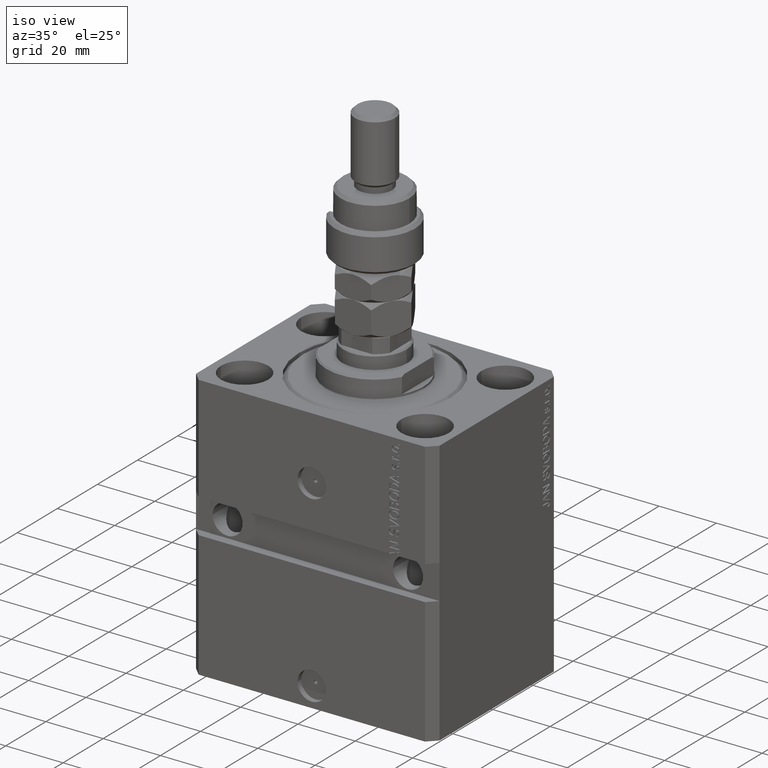
[diagram: clean part render]
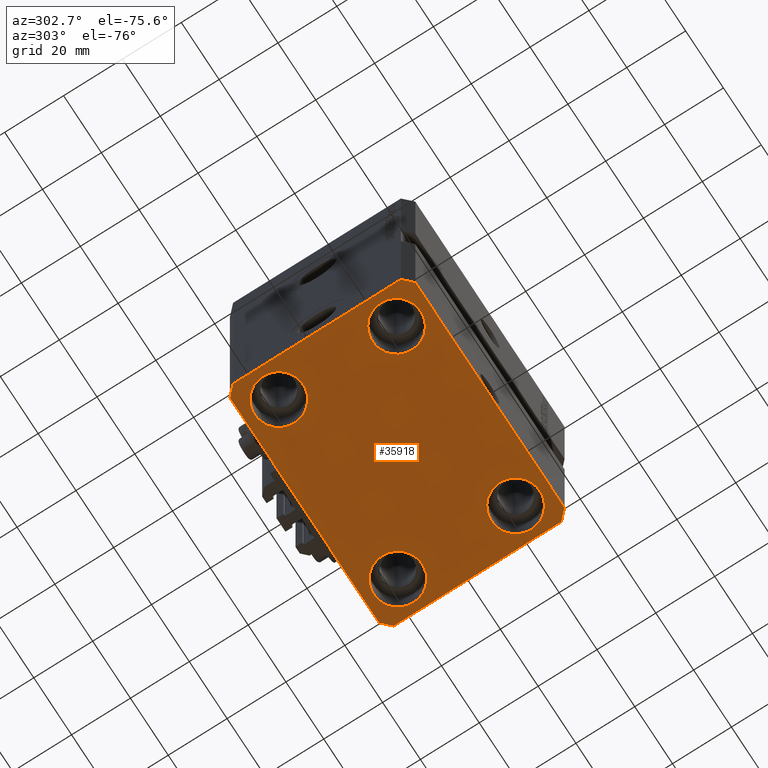
[diagram: tour spotlight — one face highlighted and labeled with its STEP entity id]
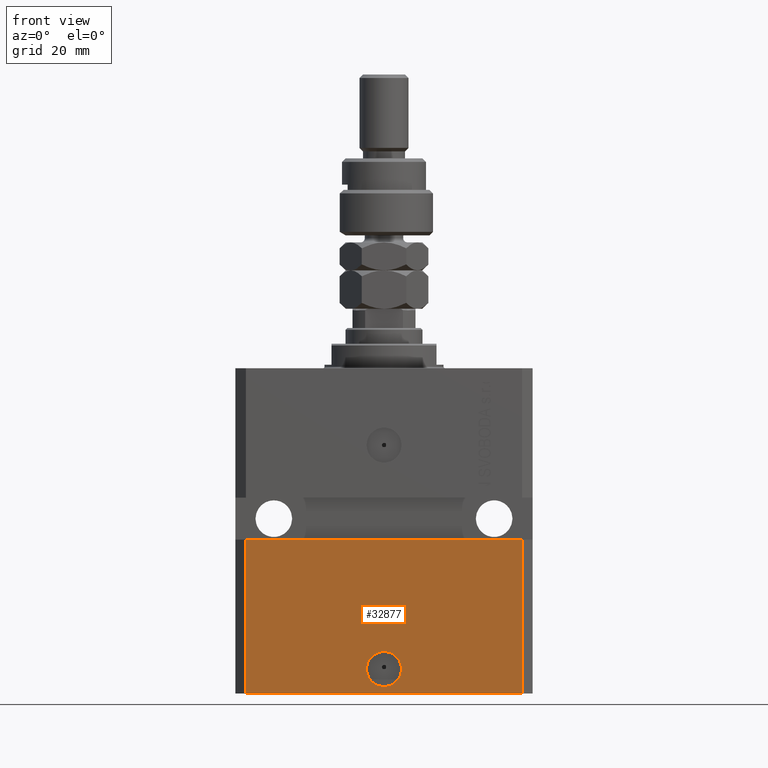
[diagram: tour spotlight — one face highlighted and labeled with its STEP entity id]
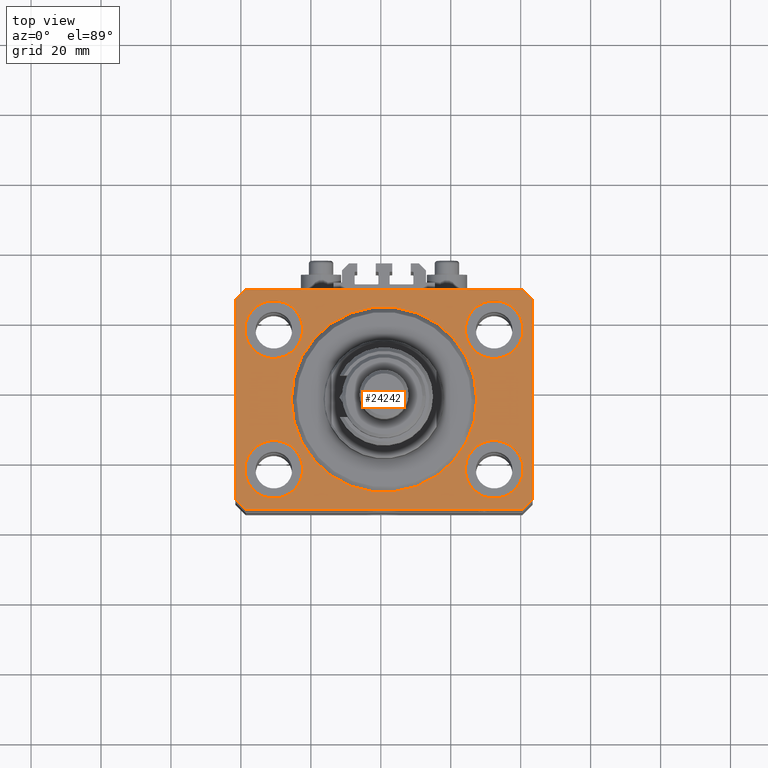
[diagram: tour spotlight — one face highlighted and labeled with its STEP entity id]
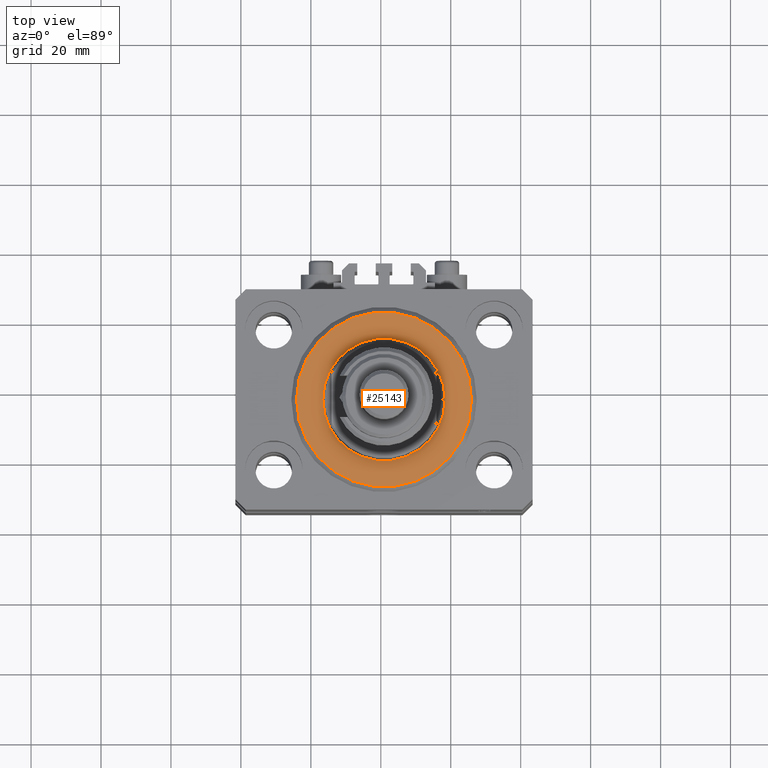
[diagram: tour spotlight — one face highlighted and labeled with its STEP entity id]
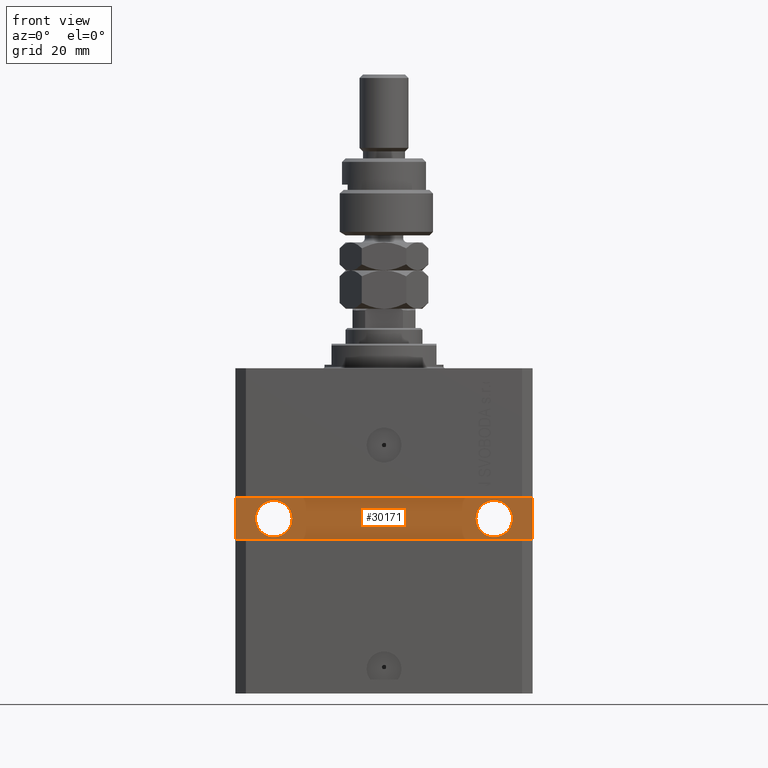
[diagram: tour spotlight — one face highlighted and labeled with its STEP entity id]
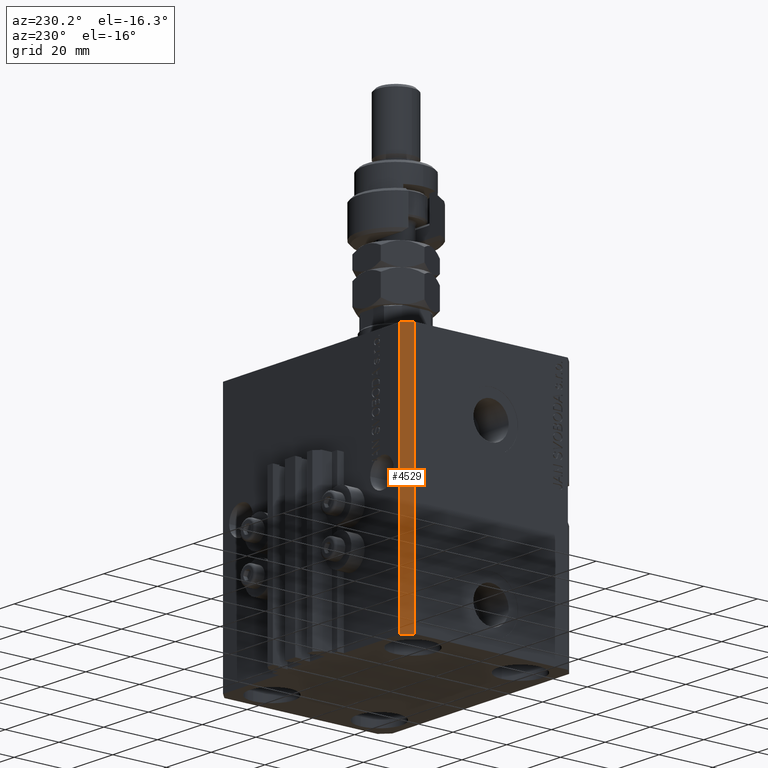
[diagram: tour spotlight — one face highlighted and labeled with its STEP entity id]
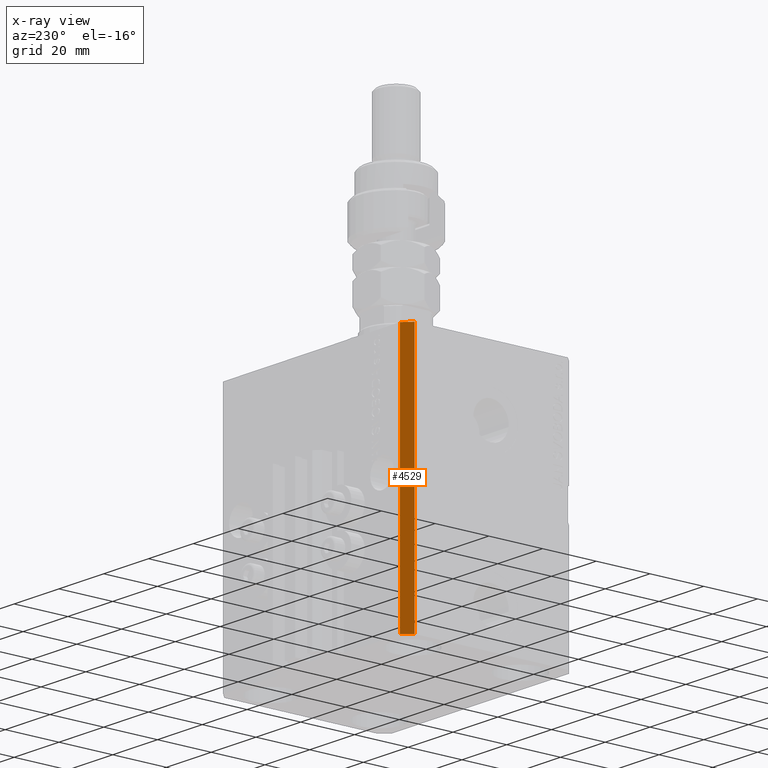
[diagram: x-ray of the same camera — body ghosted, this tour face saturated]
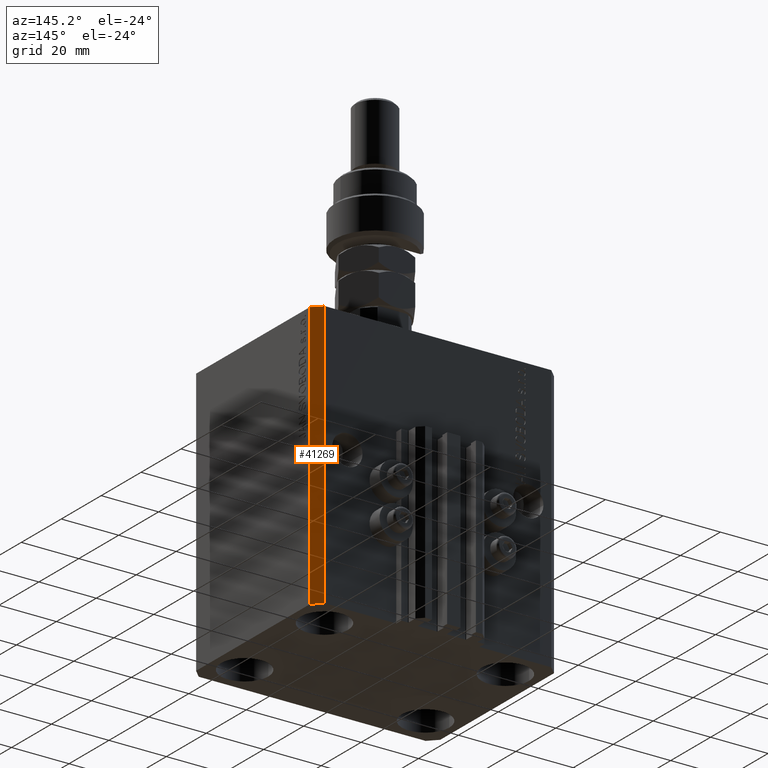
[diagram: tour spotlight — one face highlighted and labeled with its STEP entity id]
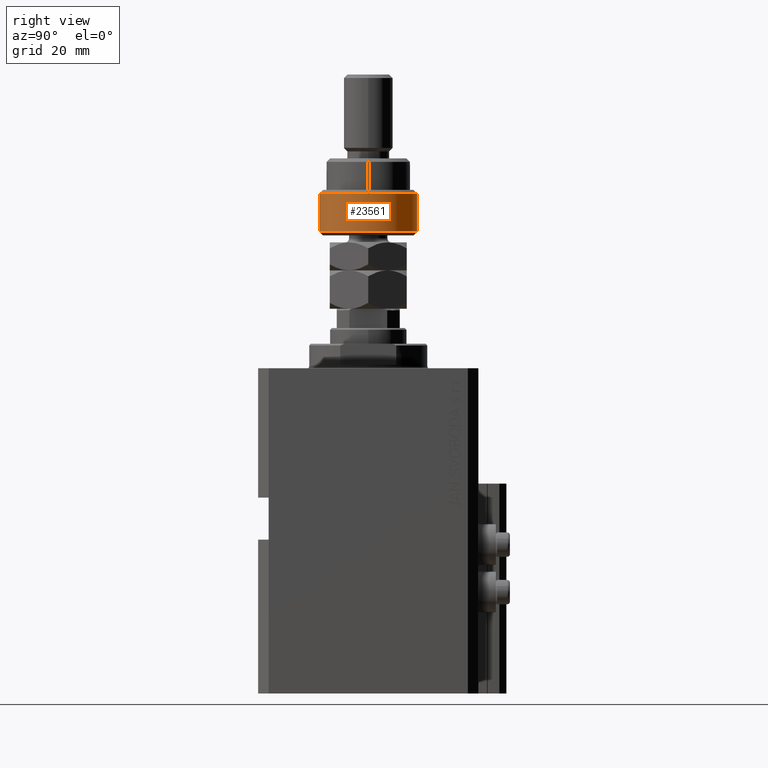
[diagram: tour spotlight — one face highlighted and labeled with its STEP entity id]
A machine part: a face-by-face anatomy tour. The part has 1172 B-rep faces; the first image is the clean iso view, then the 8 largest visible faces are spotlighted one at a time (largest first), each with its STEP entity span.

Face 1 — auxiliary view, entity #35918. In plain terms, the highlighted planar face has unit normal (0, 0, 1).
Definition (entity closure, byte-faithful):
#461 = CARTESIAN_POINT ( 'NONE',  ( 39.50000000000056843, 31.50000000000000000, -93.00000000000000000 ) ) ;
#522 = LINE ( 'NONE', #39766, #24228 ) ;
#601 = EDGE_CURVE ( 'NONE', #5259, #38019, #522, .T. ) ;
#1561 = LINE ( 'NONE', #5144, #26179 ) ;
#2593 = CIRCLE ( 'NONE', #26206, 8.249999999999992895 ) ;
#2637 = AXIS2_PLACEMENT_3D ( 'NONE', #28513, #44588, #13744 ) ;
#3036 = VERTEX_POINT ( 'NONE', #34083 ) ;
#3556 = DIRECTION ( 'NONE',  ( 1.000000000000000000, 0.000000000000000000, 0.000000000000000000 ) ) ;
#3625 = DIRECTION ( 'NONE',  ( 1.000000000000000000, 0.000000000000000000, 0.000000000000000000 ) ) ;
#4054 = DIRECTION ( 'NONE',  ( -0.000000000000000000, -0.000000000000000000, 1.000000000000000000 ) ) ;
#5020 = AXIS2_PLACEMENT_3D ( 'NONE', #45437, #42391, #42136 ) ;
#5144 = CARTESIAN_POINT ( 'NONE',  ( 42.50000000000000711, -28.50000000000000355, -93.00000000000000000 ) ) ;
#5259 = VERTEX_POINT ( 'NONE', #461 ) ;
#5648 = DIRECTION ( 'NONE',  ( -0.000000000000000000, -0.000000000000000000, 1.000000000000000000 ) ) ;
#5860 = ORIENTED_EDGE ( 'NONE', *, *, #15538, .F. ) ;
#6256 = CARTESIAN_POINT ( 'NONE',  ( -42.50000000000000000, 28.50000000000000000, -93.00000000000000000 ) ) ;
#6391 = EDGE_CURVE ( 'NONE', #50327, #32499, #20787, .T. ) ;
#6444 = FACE_OUTER_BOUND ( 'NONE', #43320, .T. ) ;
#7364 = CARTESIAN_POINT ( 'NONE',  ( 42.50000000000051870, 28.49999999999995381, -93.00000000000000000 ) ) ;
#7470 = FACE_BOUND ( 'NONE', #31992, .T. ) ;
#7492 = ORIENTED_EDGE ( 'NONE', *, *, #17282, .T. ) ;
#8246 = LINE ( 'NONE', #34756, #39908 ) ;
#8773 = CIRCLE ( 'NONE', #25006, 8.249999999999992895 ) ;
#9975 = DIRECTION ( 'NONE',  ( 1.000000000000000000, 0.000000000000000000, 0.000000000000000000 ) ) ;
#10133 = VERTEX_POINT ( 'NONE', #18000 ) ;
#10876 = DIRECTION ( 'NONE',  ( 1.000000000000000000, 0.000000000000000000, 0.000000000000000000 ) ) ;
#11075 = ORIENTED_EDGE ( 'NONE', *, *, #24583, .T. ) ;
#11296 = FACE_BOUND ( 'NONE', #12063, .T. ) ;
#11545 = FACE_BOUND ( 'NONE', #48862, .T. ) ;
#11847 = EDGE_CURVE ( 'NONE', #32499, #25874, #1561, .T. ) ;
#12048 = AXIS2_PLACEMENT_3D ( 'NONE', #27719, #27464, #3556 ) ;
#12063 = EDGE_LOOP ( 'NONE', ( #44411, #34205 ) ) ;
#12408 = CIRCLE ( 'NONE', #41684, 8.249999999999992895 ) ;
#13575 = CARTESIAN_POINT ( 'NONE',  ( -39.50000000000000711, 31.50000000000000000, -93.00000000000000000 ) ) ;
#13744 = DIRECTION ( 'NONE',  ( 1.000000000000000000, 0.000000000000000000, 0.000000000000000000 ) ) ;
#14704 = CARTESIAN_POINT ( 'NONE',  ( -23.25000000000000000, 20.00000000000000000, -93.00000000000000000 ) ) ;
#14829 = DIRECTION ( 'NONE',  ( -0.7071067811865471286, -0.7071067811865479058, 0.000000000000000000 ) ) ;
#15538 = EDGE_CURVE ( 'NONE', #43035, #41859, #38614, .T. ) ;
#16223 = CARTESIAN_POINT ( 'NONE',  ( -39.50000000000000711, -31.50000000000000000, -93.00000000000000000 ) ) ;
#16602 = ORIENTED_EDGE ( 'NONE', *, *, #6391, .F. ) ;
#17106 = VERTEX_POINT ( 'NONE', #49728 ) ;
#17282 = EDGE_CURVE ( 'NONE', #3036, #17106, #32766, .T. ) ;
#17384 = LINE ( 'NONE', #13575, #46467 ) ;
#18000 = CARTESIAN_POINT ( 'NONE',  ( 23.25000000000000355, 20.00000000000001066, -93.00000000000000000 ) ) ;
#18022 = CARTESIAN_POINT ( 'NONE',  ( -42.50000000000000000, -28.50000000000000000, -93.00000000000000000 ) ) ;
#18226 = CARTESIAN_POINT ( 'NONE',  ( -42.50000000000000000, 28.50000000000000000, -93.00000000000000000 ) ) ;
#18755 = VERTEX_POINT ( 'NONE', #40846 ) ;
#19165 = ORIENTED_EDGE ( 'NONE', *, *, #47154, .T. ) ;
#19376 = AXIS2_PLACEMENT_3D ( 'NONE', #35715, #39535, #3625 ) ;
#19562 = ORIENTED_EDGE ( 'NONE', *, *, #11847, .F. ) ;
#20787 = LINE ( 'NONE', #36581, #21875 ) ;
#21056 = DIRECTION ( 'NONE',  ( -0.000000000000000000, -0.000000000000000000, 1.000000000000000000 ) ) ;
#21875 = VECTOR ( 'NONE', #32754, 1000.000000000000000 ) ;
#21975 = CARTESIAN_POINT ( 'NONE',  ( 23.25000000000000355, -20.00000000000000000, -93.00000000000000000 ) ) ;
#22494 = PLANE ( 'NONE',  #5020 ) ;
#22906 = DIRECTION ( 'NONE',  ( -0.7071067811865356934, 0.7071067811865594521, 0.000000000000000000 ) ) ;
#23168 = ORIENTED_EDGE ( 'NONE', *, *, #24602, .T. ) ;
#23179 = ORIENTED_EDGE ( 'NONE', *, *, #33262, .F. ) ;
#24134 = CARTESIAN_POINT ( 'NONE',  ( 31.50000000000000000, -20.00000000000000000, -93.00000000000000000 ) ) ;
#24228 = VECTOR ( 'NONE', #46668, 1000.000000000000000 ) ;
#24583 = EDGE_CURVE ( 'NONE', #17106, #3036, #32356, .T. ) ;
#24602 = EDGE_CURVE ( 'NONE', #41662, #10133, #8773, .T. ) ;
#24617 = CARTESIAN_POINT ( 'NONE',  ( -31.50000000000000000, 20.00000000000000000, -93.00000000000000000 ) ) ;
#25006 = AXIS2_PLACEMENT_3D ( 'NONE', #43057, #4054, #31052 ) ;
#25169 = EDGE_CURVE ( 'NONE', #31574, #18755, #39722, .T. ) ;
#25610 = CIRCLE ( 'NONE', #28082, 8.250000000000000000 ) ;
#25874 = VERTEX_POINT ( 'NONE', #33011 ) ;
#26179 = VECTOR ( 'NONE', #40551, 1000.000000000000000 ) ;
#26206 = AXIS2_PLACEMENT_3D ( 'NONE', #24134, #21056, #28694 ) ;
#26818 = FACE_BOUND ( 'NONE', #41389, .T. ) ;
#27330 = VERTEX_POINT ( 'NONE', #38419 ) ;
#27464 = DIRECTION ( 'NONE',  ( -0.000000000000000000, -0.000000000000000000, 1.000000000000000000 ) ) ;
#27719 = CARTESIAN_POINT ( 'NONE',  ( -31.50000000000000000, -20.00000000000000000, -93.00000000000000000 ) ) ;
#27836 = CARTESIAN_POINT ( 'NONE',  ( 39.50000000000000711, -31.50000000000000000, -93.00000000000000000 ) ) ;
#28082 = AXIS2_PLACEMENT_3D ( 'NONE', #24617, #36342, #28418 ) ;
#28418 = DIRECTION ( 'NONE',  ( 1.000000000000000000, 0.000000000000000000, 0.000000000000000000 ) ) ;
#28513 = CARTESIAN_POINT ( 'NONE',  ( -31.50000000000000000, -20.00000000000000000, -93.00000000000000000 ) ) ;
#28517 = AXIS2_PLACEMENT_3D ( 'NONE', #49350, #29455, #10876 ) ;
#28694 = DIRECTION ( 'NONE',  ( 1.000000000000000000, 0.000000000000000000, 0.000000000000000000 ) ) ;
#29455 = DIRECTION ( 'NONE',  ( -0.000000000000000000, -0.000000000000000000, 1.000000000000000000 ) ) ;
#29511 = CARTESIAN_POINT ( 'NONE',  ( 42.50000000000000711, -28.50000000000000355, -93.00000000000000000 ) ) ;
#30157 = EDGE_CURVE ( 'NONE', #41859, #35454, #8246, .T. ) ;
#30317 = ORIENTED_EDGE ( 'NONE', *, *, #601, .F. ) ;
#30649 = CARTESIAN_POINT ( 'NONE',  ( -39.50000000000000711, 31.50000000000000000, -93.00000000000000000 ) ) ;
#30956 = EDGE_CURVE ( 'NONE', #38019, #43035, #17384, .T. ) ;
#31052 = DIRECTION ( 'NONE',  ( 1.000000000000000000, 0.000000000000000000, 0.000000000000000000 ) ) ;
#31574 = VERTEX_POINT ( 'NONE', #14704 ) ;
#31841 = VECTOR ( 'NONE', #42207, 1000.000000000000000 ) ;
#31916 = VECTOR ( 'NONE', #32542, 1000.000000000000000 ) ;
#31992 = EDGE_LOOP ( 'NONE', ( #42807, #23168 ) ) ;
#32356 = CIRCLE ( 'NONE', #12048, 8.250000000000000000 ) ;
#32499 = VERTEX_POINT ( 'NONE', #29511 ) ;
#32542 = DIRECTION ( 'NONE',  ( 1.000000000000000000, 0.000000000000000000, 0.000000000000000000 ) ) ;
#32754 = DIRECTION ( 'NONE',  ( 0.7071067811865483499, 0.7071067811865466846, 0.000000000000000000 ) ) ;
#32766 = CIRCLE ( 'NONE', #2637, 8.250000000000000000 ) ;
#32791 = CARTESIAN_POINT ( 'NONE',  ( -39.50000000000000711, -31.50000000000000000, -93.00000000000000000 ) ) ;
#33011 = CARTESIAN_POINT ( 'NONE',  ( 42.50000000000051870, 28.49999999999995381, -93.00000000000000000 ) ) ;
#33262 = EDGE_CURVE ( 'NONE', #25874, #5259, #49410, .T. ) ;
#33549 = EDGE_CURVE ( 'NONE', #35971, #27330, #42394, .T. ) ;
#34083 = CARTESIAN_POINT ( 'NONE',  ( -23.25000000000000000, -20.00000000000000000, -93.00000000000000000 ) ) ;
#34205 = ORIENTED_EDGE ( 'NONE', *, *, #36486, .T. ) ;
#34756 = CARTESIAN_POINT ( 'NONE',  ( -42.50000000000000000, -28.50000000000000000, -93.00000000000000000 ) ) ;
#35454 = VERTEX_POINT ( 'NONE', #16223 ) ;
#35715 = CARTESIAN_POINT ( 'NONE',  ( -31.50000000000000000, 20.00000000000000000, -93.00000000000000000 ) ) ;
#35918 = ADVANCED_FACE ( 'NONE', ( #11545, #11296, #7470, #26818, #6444 ), #22494, .F. ) ;
#35971 = VERTEX_POINT ( 'NONE', #21975 ) ;
#36342 = DIRECTION ( 'NONE',  ( -0.000000000000000000, -0.000000000000000000, 1.000000000000000000 ) ) ;
#36486 = EDGE_CURVE ( 'NONE', #27330, #35971, #2593, .T. ) ;
#36581 = CARTESIAN_POINT ( 'NONE',  ( 39.50000000000000711, -31.50000000000000000, -93.00000000000000000 ) ) ;
#36866 = LINE ( 'NONE', #32791, #31916 ) ;
#36915 = EDGE_CURVE ( 'NONE', #10133, #41662, #12408, .T. ) ;
#37969 = ORIENTED_EDGE ( 'NONE', *, *, #25169, .T. ) ;
#38019 = VERTEX_POINT ( 'NONE', #30649 ) ;
#38296 = EDGE_CURVE ( 'NONE', #35454, #50327, #36866, .T. ) ;
#38419 = CARTESIAN_POINT ( 'NONE',  ( 39.74999999999999289, -20.00000000000000000, -93.00000000000000000 ) ) ;
#38614 = LINE ( 'NONE', #18226, #31841 ) ;
#39535 = DIRECTION ( 'NONE',  ( -0.000000000000000000, -0.000000000000000000, 1.000000000000000000 ) ) ;
#39722 = CIRCLE ( 'NONE', #19376, 8.250000000000000000 ) ;
#39766 = CARTESIAN_POINT ( 'NONE',  ( 39.50000000000056843, 31.50000000000000000, -93.00000000000000000 ) ) ;
#39908 = VECTOR ( 'NONE', #46488, 1000.000000000000000 ) ;
#40551 = DIRECTION ( 'NONE',  ( 8.886653596232072440E-15, 1.000000000000000000, 0.000000000000000000 ) ) ;
#40564 = CARTESIAN_POINT ( 'NONE',  ( 31.50000000000000000, 20.00000000000001066, -93.00000000000000000 ) ) ;
#40846 = CARTESIAN_POINT ( 'NONE',  ( -39.75000000000000000, 20.00000000000000000, -93.00000000000000000 ) ) ;
#41389 = EDGE_LOOP ( 'NONE', ( #19165, #37969 ) ) ;
#41662 = VERTEX_POINT ( 'NONE', #45104 ) ;
#41684 = AXIS2_PLACEMENT_3D ( 'NONE', #40564, #5648, #9975 ) ;
#41859 = VERTEX_POINT ( 'NONE', #18022 ) ;
#42136 = DIRECTION ( 'NONE',  ( 1.000000000000000000, 0.000000000000000000, -0.000000000000000000 ) ) ;
#42207 = DIRECTION ( 'NONE',  ( 0.000000000000000000, -1.000000000000000000, 0.000000000000000000 ) ) ;
#42391 = DIRECTION ( 'NONE',  ( 0.000000000000000000, 0.000000000000000000, 1.000000000000000000 ) ) ;
#42394 = CIRCLE ( 'NONE', #28517, 8.249999999999992895 ) ;
#42807 = ORIENTED_EDGE ( 'NONE', *, *, #36915, .T. ) ;
#43035 = VERTEX_POINT ( 'NONE', #6256 ) ;
#43057 = CARTESIAN_POINT ( 'NONE',  ( 31.50000000000000000, 20.00000000000001066, -93.00000000000000000 ) ) ;
#43320 = EDGE_LOOP ( 'NONE', ( #30317, #23179, #19562, #16602, #45325, #49980, #5860, #49940 ) ) ;
#44411 = ORIENTED_EDGE ( 'NONE', *, *, #33549, .T. ) ;
#44588 = DIRECTION ( 'NONE',  ( -0.000000000000000000, -0.000000000000000000, 1.000000000000000000 ) ) ;
#45104 = CARTESIAN_POINT ( 'NONE',  ( 39.74999999999999289, 20.00000000000001066, -93.00000000000000000 ) ) ;
#45325 = ORIENTED_EDGE ( 'NONE', *, *, #38296, .F. ) ;
#45437 = CARTESIAN_POINT ( 'NONE',  ( 0.000000000000000000, 0.000000000000000000, -93.00000000000000000 ) ) ;
#45720 = VECTOR ( 'NONE', #22906, 1000.000000000000114 ) ;
#46467 = VECTOR ( 'NONE', #14829, 1000.000000000000000 ) ;
#46488 = DIRECTION ( 'NONE',  ( 0.7071067811865471286, -0.7071067811865479058, 0.000000000000000000 ) ) ;
#46668 = DIRECTION ( 'NONE',  ( -1.000000000000000000, 0.000000000000000000, 0.000000000000000000 ) ) ;
#47154 = EDGE_CURVE ( 'NONE', #18755, #31574, #25610, .T. ) ;
#48862 = EDGE_LOOP ( 'NONE', ( #11075, #7492 ) ) ;
#49350 = CARTESIAN_POINT ( 'NONE',  ( 31.50000000000000000, -20.00000000000000000, -93.00000000000000000 ) ) ;
#49410 = LINE ( 'NONE', #7364, #45720 ) ;
#49728 = CARTESIAN_POINT ( 'NONE',  ( -39.75000000000000000, -20.00000000000000000, -93.00000000000000000 ) ) ;
#49940 = ORIENTED_EDGE ( 'NONE', *, *, #30956, .F. ) ;
#49980 = ORIENTED_EDGE ( 'NONE', *, *, #30157, .F. ) ;
#50327 = VERTEX_POINT ( 'NONE', #27836 ) ;

Face 2 — front view, entity #32877. In plain terms, the highlighted planar face has unit normal (0, -1, 0).
Definition (entity closure, byte-faithful):
#1655 = LINE ( 'NONE', #13130, #37667 ) ;
#2106 = LINE ( 'NONE', #41096, #18574 ) ;
#5558 = DIRECTION ( 'NONE',  ( 1.176083712526788232E-16, -1.000000000000000000, 0.000000000000000000 ) ) ;
#6932 = AXIS2_PLACEMENT_3D ( 'NONE', #40422, #29922, #30438 ) ;
#7310 = CARTESIAN_POINT ( 'NONE',  ( 5.000000000000006217, -31.50000000000000000, -86.00000000000000000 ) ) ;
#8307 = DIRECTION ( 'NONE',  ( 0.000000000000000000, -0.000000000000000000, -1.000000000000000000 ) ) ;
#8629 = DIRECTION ( 'NONE',  ( 1.000000000000000000, 0.000000000000000000, 0.000000000000000000 ) ) ;
#11327 = ORIENTED_EDGE ( 'NONE', *, *, #35524, .F. ) ;
#11373 = FACE_OUTER_BOUND ( 'NONE', #18139, .T. ) ;
#13130 = CARTESIAN_POINT ( 'NONE',  ( -39.50000000000000711, -31.50000000000000000, -93.00000000000000000 ) ) ;
#14075 = ORIENTED_EDGE ( 'NONE', *, *, #38296, .T. ) ;
#15686 = PLANE ( 'NONE',  #18862 ) ;
#16223 = CARTESIAN_POINT ( 'NONE',  ( -39.50000000000000711, -31.50000000000000000, -93.00000000000000000 ) ) ;
#18139 = EDGE_LOOP ( 'NONE', ( #11327, #21619, #14075, #45222 ) ) ;
#18574 = VECTOR ( 'NONE', #20733, 1000.000000000000000 ) ;
#18862 = AXIS2_PLACEMENT_3D ( 'NONE', #19010, #19504, #8307 ) ;
#19010 = CARTESIAN_POINT ( 'NONE',  ( -39.50000000000000711, -31.50000000000000000, -93.00000000000000000 ) ) ;
#19504 = DIRECTION ( 'NONE',  ( 0.000000000000000000, -1.000000000000000000, 0.000000000000000000 ) ) ;
#19565 = EDGE_CURVE ( 'NONE', #46136, #35879, #37704, .T. ) ;
#20733 = DIRECTION ( 'NONE',  ( 0.000000000000000000, 0.000000000000000000, 1.000000000000000000 ) ) ;
#20855 = VERTEX_POINT ( 'NONE', #25359 ) ;
#21358 = CARTESIAN_POINT ( 'NONE',  ( 39.50000000000001421, -31.49999999999999289, -48.99999999999999289 ) ) ;
#21619 = ORIENTED_EDGE ( 'NONE', *, *, #38591, .F. ) ;
#24946 = EDGE_CURVE ( 'NONE', #50327, #42679, #2106, .T. ) ;
#25359 = CARTESIAN_POINT ( 'NONE',  ( -39.50000000000000000, -31.50000000000000711, -48.99999999999999289 ) ) ;
#25611 = DIRECTION ( 'NONE',  ( 1.000000000000000000, 1.632680918566406300E-16, 0.000000000000000000 ) ) ;
#25857 = CARTESIAN_POINT ( 'NONE',  ( -42.50000000000000000, -31.50000000000000711, -48.99999999999999289 ) ) ;
#27836 = CARTESIAN_POINT ( 'NONE',  ( 39.50000000000000711, -31.50000000000000000, -93.00000000000000000 ) ) ;
#29463 = ORIENTED_EDGE ( 'NONE', *, *, #19565, .F. ) ;
#29922 = DIRECTION ( 'NONE',  ( 1.176083712526788232E-16, -1.000000000000000000, 0.000000000000000000 ) ) ;
#30438 = DIRECTION ( 'NONE',  ( 1.000000000000000000, 0.000000000000000000, 0.000000000000000000 ) ) ;
#31916 = VECTOR ( 'NONE', #32542, 1000.000000000000000 ) ;
#32542 = DIRECTION ( 'NONE',  ( 1.000000000000000000, 0.000000000000000000, 0.000000000000000000 ) ) ;
#32791 = CARTESIAN_POINT ( 'NONE',  ( -39.50000000000000711, -31.50000000000000000, -93.00000000000000000 ) ) ;
#32877 = ADVANCED_FACE ( 'NONE', ( #43227, #11373 ), #15686, .T. ) ;
#33265 = LINE ( 'NONE', #25857, #36760 ) ;
#35454 = VERTEX_POINT ( 'NONE', #16223 ) ;
#35524 = EDGE_CURVE ( 'NONE', #20855, #42679, #33265, .T. ) ;
#35879 = VERTEX_POINT ( 'NONE', #50032 ) ;
#36760 = VECTOR ( 'NONE', #25611, 1000.000000000000000 ) ;
#36866 = LINE ( 'NONE', #32791, #31916 ) ;
#37508 = EDGE_LOOP ( 'NONE', ( #29463, #39341 ) ) ;
#37667 = VECTOR ( 'NONE', #40895, 1000.000000000000000 ) ;
#37704 = CIRCLE ( 'NONE', #45021, 5.000000000000006217 ) ;
#38296 = EDGE_CURVE ( 'NONE', #35454, #50327, #36866, .T. ) ;
#38591 = EDGE_CURVE ( 'NONE', #35454, #20855, #1655, .T. ) ;
#39341 = ORIENTED_EDGE ( 'NONE', *, *, #43835, .F. ) ;
#40422 = CARTESIAN_POINT ( 'NONE',  ( 0.000000000000000000, -31.50000000000000000, -86.00000000000000000 ) ) ;
#40472 = CARTESIAN_POINT ( 'NONE',  ( 0.000000000000000000, -31.50000000000000000, -86.00000000000000000 ) ) ;
#40895 = DIRECTION ( 'NONE',  ( 0.000000000000000000, 0.000000000000000000, 1.000000000000000000 ) ) ;
#41096 = CARTESIAN_POINT ( 'NONE',  ( 39.50000000000000711, -31.50000000000000000, -93.00000000000000000 ) ) ;
#41944 = CIRCLE ( 'NONE', #6932, 5.000000000000006217 ) ;
#42679 = VERTEX_POINT ( 'NONE', #21358 ) ;
#43227 = FACE_BOUND ( 'NONE', #37508, .T. ) ;
#43835 = EDGE_CURVE ( 'NONE', #35879, #46136, #41944, .T. ) ;
#45021 = AXIS2_PLACEMENT_3D ( 'NONE', #40472, #5558, #8629 ) ;
#45222 = ORIENTED_EDGE ( 'NONE', *, *, #24946, .T. ) ;
#46136 = VERTEX_POINT ( 'NONE', #7310 ) ;
#50032 = CARTESIAN_POINT ( 'NONE',  ( -5.000000000000006217, -31.50000000000000000, -86.00000000000000000 ) ) ;
#50327 = VERTEX_POINT ( 'NONE', #27836 ) ;

Face 3 — top view, entity #24242. In plain terms, the highlighted planar face has unit normal (0, 0, 1).
Definition (entity closure, byte-faithful):
#67 = VECTOR ( 'NONE', #22591, 1000.000000000000114 ) ;
#131 = EDGE_CURVE ( 'NONE', #48415, #21898, #526, .T. ) ;
#497 = VECTOR ( 'NONE', #23290, 1000.000000000000000 ) ;
#526 = LINE ( 'NONE', #16059, #7138 ) ;
#667 = DIRECTION ( 'NONE',  ( 1.000000000000000000, 0.000000000000000000, 0.000000000000000000 ) ) ;
#841 = CARTESIAN_POINT ( 'NONE',  ( 42.50000000000051870, 28.49999999999995381, 0.000000000000000000 ) ) ;
#985 = DIRECTION ( 'NONE',  ( 0.000000000000000000, 0.000000000000000000, 1.000000000000000000 ) ) ;
#1627 = LINE ( 'NONE', #13593, #13377 ) ;
#1873 = CARTESIAN_POINT ( 'NONE',  ( -23.25000000000000000, 20.00000000000000000, 0.000000000000000000 ) ) ;
#2002 = CARTESIAN_POINT ( 'NONE',  ( 42.50000000000000711, -28.50000000000000355, 0.000000000000000000 ) ) ;
#2369 = DIRECTION ( 'NONE',  ( 1.000000000000000000, 0.000000000000000000, 0.000000000000000000 ) ) ;
#2429 = LINE ( 'NONE', #17960, #14784 ) ;
#2679 = DIRECTION ( 'NONE',  ( 1.000000000000000000, 0.000000000000000000, 0.000000000000000000 ) ) ;
#2764 = CARTESIAN_POINT ( 'NONE',  ( 39.50000000000056843, 31.50000000000000000, 0.000000000000000000 ) ) ;
#3265 = EDGE_CURVE ( 'NONE', #23644, #29036, #6325, .T. ) ;
#3358 = FACE_OUTER_BOUND ( 'NONE', #35093, .T. ) ;
#3538 = DIRECTION ( 'NONE',  ( 1.000000000000000000, 0.000000000000000000, 0.000000000000000000 ) ) ;
#4218 = AXIS2_PLACEMENT_3D ( 'NONE', #19566, #26711, #3538 ) ;
#4353 = VERTEX_POINT ( 'NONE', #9593 ) ;
#4531 = CARTESIAN_POINT ( 'NONE',  ( 23.25000000000000355, 20.00000000000001066, 0.000000000000000000 ) ) ;
#6170 = CARTESIAN_POINT ( 'NONE',  ( 0.000000000000000000, 0.000000000000000000, 0.000000000000000000 ) ) ;
#6240 = LINE ( 'NONE', #48801, #27974 ) ;
#6325 = CIRCLE ( 'NONE', #12851, 26.50000000000000355 ) ;
#6512 = EDGE_CURVE ( 'NONE', #26077, #39123, #46329, .T. ) ;
#6536 = LINE ( 'NONE', #40957, #67 ) ;
#6606 = ORIENTED_EDGE ( 'NONE', *, *, #32654, .F. ) ;
#7138 = VECTOR ( 'NONE', #13004, 1000.000000000000000 ) ;
#7777 = DIRECTION ( 'NONE',  ( 1.000000000000000000, 0.000000000000000000, 0.000000000000000000 ) ) ;
#8000 = ORIENTED_EDGE ( 'NONE', *, *, #11885, .F. ) ;
#8328 = EDGE_CURVE ( 'NONE', #35748, #23328, #21944, .T. ) ;
#8366 = VECTOR ( 'NONE', #41596, 1000.000000000000000 ) ;
#8514 = ORIENTED_EDGE ( 'NONE', *, *, #21130, .T. ) ;
#9047 = CIRCLE ( 'NONE', #20435, 8.249999999999992895 ) ;
#9593 = CARTESIAN_POINT ( 'NONE',  ( -39.50000000000000711, 31.50000000000000000, 0.000000000000000000 ) ) ;
#10003 = FACE_BOUND ( 'NONE', #49436, .T. ) ;
#10012 = ORIENTED_EDGE ( 'NONE', *, *, #18837, .T. ) ;
#10028 = DIRECTION ( 'NONE',  ( 0.7071067811865471286, -0.7071067811865479058, 0.000000000000000000 ) ) ;
#10761 = LINE ( 'NONE', #14827, #8366 ) ;
#11010 = FACE_BOUND ( 'NONE', #32221, .T. ) ;
#11136 = EDGE_LOOP ( 'NONE', ( #16366, #35945 ) ) ;
#11885 = EDGE_CURVE ( 'NONE', #36205, #45091, #48164, .T. ) ;
#12106 = DIRECTION ( 'NONE',  ( 0.000000000000000000, 0.000000000000000000, 1.000000000000000000 ) ) ;
#12175 = DIRECTION ( 'NONE',  ( 1.000000000000000000, 0.000000000000000000, 0.000000000000000000 ) ) ;
#12556 = ORIENTED_EDGE ( 'NONE', *, *, #8328, .F. ) ;
#12851 = AXIS2_PLACEMENT_3D ( 'NONE', #49836, #49315, #2679 ) ;
#12905 = CARTESIAN_POINT ( 'NONE',  ( -42.50000000000000000, -28.50000000000000000, 0.000000000000000000 ) ) ;
#13004 = DIRECTION ( 'NONE',  ( 0.7071067811865483499, 0.7071067811865466846, 0.000000000000000000 ) ) ;
#13377 = VECTOR ( 'NONE', #10028, 1000.000000000000000 ) ;
#13593 = CARTESIAN_POINT ( 'NONE',  ( -42.50000000000000000, -28.50000000000000000, 0.000000000000000000 ) ) ;
#14137 = DIRECTION ( 'NONE',  ( 1.000000000000000000, 0.000000000000000000, 0.000000000000000000 ) ) ;
#14549 = CARTESIAN_POINT ( 'NONE',  ( -39.75000000000000000, 20.00000000000000000, 0.000000000000000000 ) ) ;
#14784 = VECTOR ( 'NONE', #33516, 1000.000000000000000 ) ;
#14785 = LINE ( 'NONE', #49971, #34555 ) ;
#14787 = CIRCLE ( 'NONE', #4218, 8.250000000000000000 ) ;
#14820 = FACE_BOUND ( 'NONE', #21110, .T. ) ;
#14827 = CARTESIAN_POINT ( 'NONE',  ( -42.50000000000000000, 28.50000000000000000, 0.000000000000000000 ) ) ;
#16059 = CARTESIAN_POINT ( 'NONE',  ( 39.50000000000000711, -31.50000000000000000, 0.000000000000000000 ) ) ;
#16366 = ORIENTED_EDGE ( 'NONE', *, *, #3265, .F. ) ;
#16520 = DIRECTION ( 'NONE',  ( 1.000000000000000000, 0.000000000000000000, 0.000000000000000000 ) ) ;
#16842 = ORIENTED_EDGE ( 'NONE', *, *, #34895, .F. ) ;
#16919 = VERTEX_POINT ( 'NONE', #30647 ) ;
#16947 = VERTEX_POINT ( 'NONE', #35246 ) ;
#16953 = CARTESIAN_POINT ( 'NONE',  ( 31.50000000000000000, -20.00000000000000000, 0.000000000000000000 ) ) ;
#17059 = CARTESIAN_POINT ( 'NONE',  ( 23.25000000000000355, -20.00000000000000000, 0.000000000000000000 ) ) ;
#17960 = CARTESIAN_POINT ( 'NONE',  ( 42.50000000000000711, -28.50000000000000355, 0.000000000000000000 ) ) ;
#18339 = CIRCLE ( 'NONE', #23265, 8.250000000000000000 ) ;
#18837 = EDGE_CURVE ( 'NONE', #16919, #43796, #10761, .T. ) ;
#18894 = FACE_BOUND ( 'NONE', #29673, .T. ) ;
#19341 = AXIS2_PLACEMENT_3D ( 'NONE', #6170, #41083, #21693 ) ;
#19566 = CARTESIAN_POINT ( 'NONE',  ( -31.50000000000000000, 20.00000000000000000, 0.000000000000000000 ) ) ;
#19719 = LINE ( 'NONE', #23801, #497 ) ;
#19960 = CARTESIAN_POINT ( 'NONE',  ( 39.74999999999999289, 20.00000000000001066, 0.000000000000000000 ) ) ;
#20103 = CARTESIAN_POINT ( 'NONE',  ( -31.50000000000000000, 20.00000000000000000, 0.000000000000000000 ) ) ;
#20328 = AXIS2_PLACEMENT_3D ( 'NONE', #20103, #39738, #31819 ) ;
#20435 = AXIS2_PLACEMENT_3D ( 'NONE', #23998, #27805, #36711 ) ;
#21110 = EDGE_LOOP ( 'NONE', ( #8000, #49178 ) ) ;
#21130 = EDGE_CURVE ( 'NONE', #43796, #16947, #1627, .T. ) ;
#21420 = CARTESIAN_POINT ( 'NONE',  ( -23.25000000000000000, -20.00000000000000000, 0.000000000000000000 ) ) ;
#21693 = DIRECTION ( 'NONE',  ( 1.000000000000000000, 0.000000000000000000, -0.000000000000000000 ) ) ;
#21898 = VERTEX_POINT ( 'NONE', #2002 ) ;
#21944 = CIRCLE ( 'NONE', #20328, 8.250000000000000000 ) ;
#21972 = CARTESIAN_POINT ( 'NONE',  ( 0.000000000000000000, 0.000000000000000000, 0.000000000000000000 ) ) ;
#22332 = CARTESIAN_POINT ( 'NONE',  ( 26.50000000000000355, 0.000000000000000000, 0.000000000000000000 ) ) ;
#22344 = EDGE_CURVE ( 'NONE', #4353, #16919, #14785, .T. ) ;
#22591 = DIRECTION ( 'NONE',  ( -0.7071067811865356934, 0.7071067811865594521, 0.000000000000000000 ) ) ;
#23265 = AXIS2_PLACEMENT_3D ( 'NONE', #31958, #12106, #7777 ) ;
#23290 = DIRECTION ( 'NONE',  ( -1.000000000000000000, 0.000000000000000000, 0.000000000000000000 ) ) ;
#23328 = VERTEX_POINT ( 'NONE', #14549 ) ;
#23644 = VERTEX_POINT ( 'NONE', #22332 ) ;
#23801 = CARTESIAN_POINT ( 'NONE',  ( 39.50000000000056843, 31.50000000000000000, 0.000000000000000000 ) ) ;
#23998 = CARTESIAN_POINT ( 'NONE',  ( 31.50000000000000000, -20.00000000000000000, 0.000000000000000000 ) ) ;
#24242 = ADVANCED_FACE ( 'NONE', ( #14820, #10003, #18894, #11010, #42105, #3358 ), #25524, .T. ) ;
#24499 = CARTESIAN_POINT ( 'NONE',  ( -31.50000000000000000, -20.00000000000000000, 0.000000000000000000 ) ) ;
#24542 = ORIENTED_EDGE ( 'NONE', *, *, #46369, .T. ) ;
#25161 = ORIENTED_EDGE ( 'NONE', *, *, #33513, .T. ) ;
#25189 = AXIS2_PLACEMENT_3D ( 'NONE', #47591, #39937, #12175 ) ;
#25524 = PLANE ( 'NONE',  #19341 ) ;
#25994 = DIRECTION ( 'NONE',  ( -0.7071067811865471286, -0.7071067811865479058, 0.000000000000000000 ) ) ;
#26077 = VERTEX_POINT ( 'NONE', #42194 ) ;
#26711 = DIRECTION ( 'NONE',  ( 0.000000000000000000, 0.000000000000000000, 1.000000000000000000 ) ) ;
#26761 = AXIS2_PLACEMENT_3D ( 'NONE', #16953, #48059, #667 ) ;
#26944 = AXIS2_PLACEMENT_3D ( 'NONE', #48612, #985, #16520 ) ;
#27565 = EDGE_CURVE ( 'NONE', #29036, #23644, #49622, .T. ) ;
#27805 = DIRECTION ( 'NONE',  ( 0.000000000000000000, 0.000000000000000000, 1.000000000000000000 ) ) ;
#27974 = VECTOR ( 'NONE', #14137, 1000.000000000000000 ) ;
#28326 = EDGE_CURVE ( 'NONE', #29192, #34003, #47196, .T. ) ;
#29036 = VERTEX_POINT ( 'NONE', #46343 ) ;
#29192 = VERTEX_POINT ( 'NONE', #4531 ) ;
#29543 = ORIENTED_EDGE ( 'NONE', *, *, #6512, .F. ) ;
#29614 = DIRECTION ( 'NONE',  ( 0.000000000000000000, 0.000000000000000000, 1.000000000000000000 ) ) ;
#29673 = EDGE_LOOP ( 'NONE', ( #33892, #32868 ) ) ;
#30647 = CARTESIAN_POINT ( 'NONE',  ( -42.50000000000000000, 28.50000000000000000, 0.000000000000000000 ) ) ;
#31050 = AXIS2_PLACEMENT_3D ( 'NONE', #24499, #40056, #48199 ) ;
#31529 = EDGE_CURVE ( 'NONE', #34003, #29192, #35934, .T. ) ;
#31819 = DIRECTION ( 'NONE',  ( 1.000000000000000000, 0.000000000000000000, 0.000000000000000000 ) ) ;
#31896 = CARTESIAN_POINT ( 'NONE',  ( 39.50000000000000711, -31.50000000000000000, 0.000000000000000000 ) ) ;
#31958 = CARTESIAN_POINT ( 'NONE',  ( -31.50000000000000000, -20.00000000000000000, 0.000000000000000000 ) ) ;
#32221 = EDGE_LOOP ( 'NONE', ( #12556, #6606 ) ) ;
#32400 = CARTESIAN_POINT ( 'NONE',  ( -39.75000000000000000, -20.00000000000000000, 0.000000000000000000 ) ) ;
#32654 = EDGE_CURVE ( 'NONE', #23328, #35748, #14787, .T. ) ;
#32868 = ORIENTED_EDGE ( 'NONE', *, *, #28326, .F. ) ;
#33513 = EDGE_CURVE ( 'NONE', #50345, #48645, #6536, .T. ) ;
#33516 = DIRECTION ( 'NONE',  ( 8.886653596232072440E-15, 1.000000000000000000, 0.000000000000000000 ) ) ;
#33892 = ORIENTED_EDGE ( 'NONE', *, *, #31529, .F. ) ;
#34003 = VERTEX_POINT ( 'NONE', #19960 ) ;
#34555 = VECTOR ( 'NONE', #25994, 1000.000000000000000 ) ;
#34895 = EDGE_CURVE ( 'NONE', #39123, #26077, #9047, .T. ) ;
#35093 = EDGE_LOOP ( 'NONE', ( #24542, #40778, #10012, #8514, #40816, #43660, #48096, #25161 ) ) ;
#35246 = CARTESIAN_POINT ( 'NONE',  ( -39.50000000000000711, -31.50000000000000000, 0.000000000000000000 ) ) ;
#35540 = EDGE_CURVE ( 'NONE', #21898, #50345, #2429, .T. ) ;
#35748 = VERTEX_POINT ( 'NONE', #1873 ) ;
#35934 = CIRCLE ( 'NONE', #26944, 8.249999999999992895 ) ;
#35945 = ORIENTED_EDGE ( 'NONE', *, *, #27565, .F. ) ;
#36205 = VERTEX_POINT ( 'NONE', #21420 ) ;
#36711 = DIRECTION ( 'NONE',  ( 1.000000000000000000, 0.000000000000000000, 0.000000000000000000 ) ) ;
#39123 = VERTEX_POINT ( 'NONE', #17059 ) ;
#39738 = DIRECTION ( 'NONE',  ( 0.000000000000000000, 0.000000000000000000, 1.000000000000000000 ) ) ;
#39937 = DIRECTION ( 'NONE',  ( 0.000000000000000000, 0.000000000000000000, 1.000000000000000000 ) ) ;
#40056 = DIRECTION ( 'NONE',  ( 0.000000000000000000, 0.000000000000000000, 1.000000000000000000 ) ) ;
#40778 = ORIENTED_EDGE ( 'NONE', *, *, #22344, .T. ) ;
#40816 = ORIENTED_EDGE ( 'NONE', *, *, #41033, .T. ) ;
#40957 = CARTESIAN_POINT ( 'NONE',  ( 42.50000000000051870, 28.49999999999995381, 0.000000000000000000 ) ) ;
#41033 = EDGE_CURVE ( 'NONE', #16947, #48415, #6240, .T. ) ;
#41083 = DIRECTION ( 'NONE',  ( 0.000000000000000000, 0.000000000000000000, 1.000000000000000000 ) ) ;
#41596 = DIRECTION ( 'NONE',  ( 0.000000000000000000, -1.000000000000000000, 0.000000000000000000 ) ) ;
#42105 = FACE_BOUND ( 'NONE', #11136, .T. ) ;
#42194 = CARTESIAN_POINT ( 'NONE',  ( 39.74999999999999289, -20.00000000000000000, 0.000000000000000000 ) ) ;
#43660 = ORIENTED_EDGE ( 'NONE', *, *, #131, .T. ) ;
#43796 = VERTEX_POINT ( 'NONE', #12905 ) ;
#44790 = EDGE_CURVE ( 'NONE', #45091, #36205, #18339, .T. ) ;
#45091 = VERTEX_POINT ( 'NONE', #32400 ) ;
#46329 = CIRCLE ( 'NONE', #26761, 8.249999999999992895 ) ;
#46343 = CARTESIAN_POINT ( 'NONE',  ( -26.50000000000000355, 3.245314017740486554E-15, 0.000000000000000000 ) ) ;
#46369 = EDGE_CURVE ( 'NONE', #48645, #4353, #19719, .T. ) ;
#47196 = CIRCLE ( 'NONE', #25189, 8.249999999999992895 ) ;
#47591 = CARTESIAN_POINT ( 'NONE',  ( 31.50000000000000000, 20.00000000000001066, 0.000000000000000000 ) ) ;
#48059 = DIRECTION ( 'NONE',  ( 0.000000000000000000, 0.000000000000000000, 1.000000000000000000 ) ) ;
#48096 = ORIENTED_EDGE ( 'NONE', *, *, #35540, .T. ) ;
#48164 = CIRCLE ( 'NONE', #31050, 8.250000000000000000 ) ;
#48199 = DIRECTION ( 'NONE',  ( 1.000000000000000000, 0.000000000000000000, 0.000000000000000000 ) ) ;
#48415 = VERTEX_POINT ( 'NONE', #31896 ) ;
#48612 = CARTESIAN_POINT ( 'NONE',  ( 31.50000000000000000, 20.00000000000001066, 0.000000000000000000 ) ) ;
#48645 = VERTEX_POINT ( 'NONE', #2764 ) ;
#48772 = AXIS2_PLACEMENT_3D ( 'NONE', #21972, #29614, #2369 ) ;
#48801 = CARTESIAN_POINT ( 'NONE',  ( -39.50000000000000711, -31.50000000000000000, 0.000000000000000000 ) ) ;
#49178 = ORIENTED_EDGE ( 'NONE', *, *, #44790, .F. ) ;
#49315 = DIRECTION ( 'NONE',  ( 0.000000000000000000, 0.000000000000000000, 1.000000000000000000 ) ) ;
#49436 = EDGE_LOOP ( 'NONE', ( #29543, #16842 ) ) ;
#49622 = CIRCLE ( 'NONE', #48772, 26.50000000000000355 ) ;
#49836 = CARTESIAN_POINT ( 'NONE',  ( 0.000000000000000000, 0.000000000000000000, 0.000000000000000000 ) ) ;
#49971 = CARTESIAN_POINT ( 'NONE',  ( -39.50000000000000711, 31.50000000000000000, 0.000000000000000000 ) ) ;
#50345 = VERTEX_POINT ( 'NONE', #841 ) ;

Face 4 — top view, entity #25143. In plain terms, the highlighted planar face has unit normal (0, 0, -1).
Definition (entity closure, byte-faithful):
#1914 = EDGE_CURVE ( 'NONE', #25565, #42653, #14502, .T. ) ;
#4630 = DIRECTION ( 'NONE',  ( 1.000000000000000000, 0.000000000000000000, -0.000000000000000000 ) ) ;
#5828 = CARTESIAN_POINT ( 'NONE',  ( 24.99999999999998224, 0.000000000000000000, 0.000000000000000000 ) ) ;
#6282 = EDGE_LOOP ( 'NONE', ( #30802, #25962 ) ) ;
#7119 = DIRECTION ( 'NONE',  ( -0.000000000000000000, -0.000000000000000000, -1.000000000000000000 ) ) ;
#8059 = DIRECTION ( 'NONE',  ( 1.000000000000000000, 0.000000000000000000, 0.000000000000000000 ) ) ;
#8204 = DIRECTION ( 'NONE',  ( 0.000000000000000000, 0.000000000000000000, 1.000000000000000000 ) ) ;
#8676 = CIRCLE ( 'NONE', #22530, 24.99999999999998224 ) ;
#10546 = ORIENTED_EDGE ( 'NONE', *, *, #47903, .T. ) ;
#11451 = DIRECTION ( 'NONE',  ( 1.000000000000000000, 0.000000000000000000, 0.000000000000000000 ) ) ;
#11975 = AXIS2_PLACEMENT_3D ( 'NONE', #42044, #7119, #11451 ) ;
#13801 = DIRECTION ( 'NONE',  ( -0.000000000000000000, -0.000000000000000000, -1.000000000000000000 ) ) ;
#14502 = CIRCLE ( 'NONE', #11975, 24.99999999999998224 ) ;
#15341 = CARTESIAN_POINT ( 'NONE',  ( 0.000000000000000000, 0.000000000000000000, 0.000000000000000000 ) ) ;
#15780 = DIRECTION ( 'NONE',  ( 0.000000000000000000, 0.000000000000000000, 1.000000000000000000 ) ) ;
#17020 = CARTESIAN_POINT ( 'NONE',  ( -24.99999999999998224, 3.153465507804433615E-15, 0.000000000000000000 ) ) ;
#20049 = CIRCLE ( 'NONE', #20842, 17.50000000000000000 ) ;
#20159 = FACE_BOUND ( 'NONE', #24147, .T. ) ;
#20842 = AXIS2_PLACEMENT_3D ( 'NONE', #23853, #35573, #8059 ) ;
#22530 = AXIS2_PLACEMENT_3D ( 'NONE', #36746, #13801, #44650 ) ;
#22901 = CARTESIAN_POINT ( 'NONE',  ( -17.50000000000000000, 2.143131898507868643E-15, 2.168404344971008868E-16 ) ) ;
#23731 = EDGE_CURVE ( 'NONE', #26240, #32673, #20049, .T. ) ;
#23853 = CARTESIAN_POINT ( 'NONE',  ( 0.000000000000000000, 0.000000000000000000, 0.000000000000000000 ) ) ;
#24086 = ORIENTED_EDGE ( 'NONE', *, *, #23731, .T. ) ;
#24147 = EDGE_LOOP ( 'NONE', ( #24086, #10546 ) ) ;
#24861 = AXIS2_PLACEMENT_3D ( 'NONE', #46388, #15780, #38979 ) ;
#25143 = ADVANCED_FACE ( 'NONE', ( #20159, #43128 ), #43385, .F. ) ;
#25565 = VERTEX_POINT ( 'NONE', #17020 ) ;
#25868 = AXIS2_PLACEMENT_3D ( 'NONE', #15341, #8204, #4630 ) ;
#25962 = ORIENTED_EDGE ( 'NONE', *, *, #1914, .T. ) ;
#26240 = VERTEX_POINT ( 'NONE', #29351 ) ;
#26493 = CIRCLE ( 'NONE', #24861, 17.50000000000000000 ) ;
#29351 = CARTESIAN_POINT ( 'NONE',  ( 17.50000000000000000, 0.000000000000000000, 2.168404344971008868E-16 ) ) ;
#30802 = ORIENTED_EDGE ( 'NONE', *, *, #50377, .T. ) ;
#32673 = VERTEX_POINT ( 'NONE', #22901 ) ;
#35573 = DIRECTION ( 'NONE',  ( 0.000000000000000000, 0.000000000000000000, 1.000000000000000000 ) ) ;
#36746 = CARTESIAN_POINT ( 'NONE',  ( 0.000000000000000000, 0.000000000000000000, 0.000000000000000000 ) ) ;
#38979 = DIRECTION ( 'NONE',  ( 1.000000000000000000, 0.000000000000000000, 0.000000000000000000 ) ) ;
#42044 = CARTESIAN_POINT ( 'NONE',  ( 0.000000000000000000, 0.000000000000000000, 0.000000000000000000 ) ) ;
#42653 = VERTEX_POINT ( 'NONE', #5828 ) ;
#43128 = FACE_OUTER_BOUND ( 'NONE', #6282, .T. ) ;
#43385 = PLANE ( 'NONE',  #25868 ) ;
#44650 = DIRECTION ( 'NONE',  ( 1.000000000000000000, 0.000000000000000000, 0.000000000000000000 ) ) ;
#46388 = CARTESIAN_POINT ( 'NONE',  ( 0.000000000000000000, 0.000000000000000000, 0.000000000000000000 ) ) ;
#47903 = EDGE_CURVE ( 'NONE', #32673, #26240, #26493, .T. ) ;
#50377 = EDGE_CURVE ( 'NONE', #42653, #25565, #8676, .T. ) ;

Face 5 — front view, entity #30171. In plain terms, the highlighted planar face has unit normal (0, -1, 0).
Definition (entity closure, byte-faithful):
#270 = ORIENTED_EDGE ( 'NONE', *, *, #24526, .T. ) ;
#1087 = DIRECTION ( 'NONE',  ( 1.000000000000000000, 0.000000000000000000, 0.000000000000000000 ) ) ;
#1841 = CARTESIAN_POINT ( 'NONE',  ( 4.790119779726142858E-15, -28.50000000000000000, 0.000000000000000000 ) ) ;
#2005 = CARTESIAN_POINT ( 'NONE',  ( 26.25000000000001776, -28.49999999999999645, -43.00000000000000000 ) ) ;
#2193 = LINE ( 'NONE', #29691, #45352 ) ;
#3772 = CARTESIAN_POINT ( 'NONE',  ( -42.50000000000000000, -28.50000000000000711, -37.00000000000000711 ) ) ;
#3967 = AXIS2_PLACEMENT_3D ( 'NONE', #44032, #39697, #35869 ) ;
#5271 = EDGE_CURVE ( 'NONE', #28967, #5360, #5569, .T. ) ;
#5360 = VERTEX_POINT ( 'NONE', #24896 ) ;
#5569 = CIRCLE ( 'NONE', #3967, 5.249999999999997335 ) ;
#7890 = VERTEX_POINT ( 'NONE', #45178 ) ;
#7972 = VECTOR ( 'NONE', #18582, 1000.000000000000000 ) ;
#9169 = EDGE_CURVE ( 'NONE', #40295, #23607, #41624, .T. ) ;
#9745 = FACE_BOUND ( 'NONE', #10731, .T. ) ;
#9991 = ORIENTED_EDGE ( 'NONE', *, *, #49029, .T. ) ;
#10731 = EDGE_LOOP ( 'NONE', ( #33923, #42366 ) ) ;
#12304 = DIRECTION ( 'NONE',  ( 1.000000000000000000, 0.000000000000000000, 0.000000000000000000 ) ) ;
#13053 = CARTESIAN_POINT ( 'NONE',  ( -31.49999999999998579, -28.50000000000000355, -43.00000000000000000 ) ) ;
#17402 = ORIENTED_EDGE ( 'NONE', *, *, #9169, .T. ) ;
#17619 = PLANE ( 'NONE',  #39108 ) ;
#18278 = VERTEX_POINT ( 'NONE', #48911 ) ;
#18582 = DIRECTION ( 'NONE',  ( 0.000000000000000000, 0.000000000000000000, -1.000000000000000000 ) ) ;
#19666 = EDGE_CURVE ( 'NONE', #32835, #7890, #36078, .T. ) ;
#20083 = EDGE_LOOP ( 'NONE', ( #37782, #24558 ) ) ;
#20463 = FACE_OUTER_BOUND ( 'NONE', #39457, .T. ) ;
#21568 = CARTESIAN_POINT ( 'NONE',  ( 42.50000000000001421, -28.49999999999999289, -36.99999999999998579 ) ) ;
#21673 = DIRECTION ( 'NONE',  ( 1.101411730780568590E-16, -1.000000000000000000, 0.000000000000000000 ) ) ;
#22210 = EDGE_CURVE ( 'NONE', #5360, #28967, #22354, .T. ) ;
#22348 = CARTESIAN_POINT ( 'NONE',  ( -31.49999999999998579, -28.50000000000000355, -43.00000000000000000 ) ) ;
#22354 = CIRCLE ( 'NONE', #28852, 5.249999999999997335 ) ;
#22578 = CARTESIAN_POINT ( 'NONE',  ( -36.74999999999998579, -28.50000000000000355, -43.00000000000000000 ) ) ;
#23607 = VERTEX_POINT ( 'NONE', #21568 ) ;
#24479 = CARTESIAN_POINT ( 'NONE',  ( 42.50000000000001421, -28.49999999999999289, -48.99999999999999289 ) ) ;
#24526 = EDGE_CURVE ( 'NONE', #29087, #18278, #41270, .T. ) ;
#24558 = ORIENTED_EDGE ( 'NONE', *, *, #5271, .F. ) ;
#24896 = CARTESIAN_POINT ( 'NONE',  ( 36.75000000000001421, -28.49999999999999645, -43.00000000000000000 ) ) ;
#26068 = VECTOR ( 'NONE', #34485, 1000.000000000000000 ) ;
#26127 = VECTOR ( 'NONE', #46389, 1000.000000000000000 ) ;
#26322 = AXIS2_PLACEMENT_3D ( 'NONE', #22348, #34078, #49634 ) ;
#26480 = CARTESIAN_POINT ( 'NONE',  ( -42.50000000000000000, -28.50000000000000711, -37.00000000000000711 ) ) ;
#28852 = AXIS2_PLACEMENT_3D ( 'NONE', #32151, #39815, #12304 ) ;
#28967 = VERTEX_POINT ( 'NONE', #2005 ) ;
#29087 = VERTEX_POINT ( 'NONE', #3772 ) ;
#29331 = FACE_BOUND ( 'NONE', #20083, .T. ) ;
#29691 = CARTESIAN_POINT ( 'NONE',  ( -42.50000000000000000, -28.50000000000000711, -48.99999999999999289 ) ) ;
#30171 = ADVANCED_FACE ( 'NONE', ( #29331, #9745, #20463 ), #17619, .T. ) ;
#32151 = CARTESIAN_POINT ( 'NONE',  ( 31.50000000000001421, -28.49999999999999645, -43.00000000000000000 ) ) ;
#32429 = DIRECTION ( 'NONE',  ( 1.632680918566406300E-16, -1.000000000000000000, 0.000000000000000000 ) ) ;
#32835 = VERTEX_POINT ( 'NONE', #22578 ) ;
#33716 = CARTESIAN_POINT ( 'NONE',  ( 42.50000000000001421, -28.49999999999999289, -48.99999999999999289 ) ) ;
#33923 = ORIENTED_EDGE ( 'NONE', *, *, #34740, .F. ) ;
#34078 = DIRECTION ( 'NONE',  ( 1.101411730780568590E-16, -1.000000000000000000, 0.000000000000000000 ) ) ;
#34485 = DIRECTION ( 'NONE',  ( 0.000000000000000000, 0.000000000000000000, 1.000000000000000000 ) ) ;
#34740 = EDGE_CURVE ( 'NONE', #7890, #32835, #48904, .T. ) ;
#35068 = EDGE_CURVE ( 'NONE', #23607, #29087, #38980, .T. ) ;
#35869 = DIRECTION ( 'NONE',  ( 1.000000000000000000, 0.000000000000000000, 0.000000000000000000 ) ) ;
#36078 = CIRCLE ( 'NONE', #26322, 5.249999999999997335 ) ;
#37782 = ORIENTED_EDGE ( 'NONE', *, *, #22210, .F. ) ;
#38980 = LINE ( 'NONE', #46135, #26127 ) ;
#39108 = AXIS2_PLACEMENT_3D ( 'NONE', #1841, #32429, #40588 ) ;
#39457 = EDGE_LOOP ( 'NONE', ( #9991, #17402, #47295, #270 ) ) ;
#39697 = DIRECTION ( 'NONE',  ( 1.037025423586453699E-16, -1.000000000000000000, 1.848892746611746419E-32 ) ) ;
#39815 = DIRECTION ( 'NONE',  ( 1.037025423586453699E-16, -1.000000000000000000, 1.848892746611746419E-32 ) ) ;
#40295 = VERTEX_POINT ( 'NONE', #24479 ) ;
#40588 = DIRECTION ( 'NONE',  ( 1.000000000000000000, 1.632680918566406300E-16, 0.000000000000000000 ) ) ;
#41183 = DIRECTION ( 'NONE',  ( 1.000000000000000000, 1.632680918566406300E-16, 0.000000000000000000 ) ) ;
#41270 = LINE ( 'NONE', #26480, #7972 ) ;
#41624 = LINE ( 'NONE', #33716, #26068 ) ;
#42366 = ORIENTED_EDGE ( 'NONE', *, *, #19666, .F. ) ;
#44032 = CARTESIAN_POINT ( 'NONE',  ( 31.50000000000001421, -28.49999999999999645, -43.00000000000000000 ) ) ;
#44836 = AXIS2_PLACEMENT_3D ( 'NONE', #13053, #21673, #1087 ) ;
#45178 = CARTESIAN_POINT ( 'NONE',  ( -26.24999999999998934, -28.50000000000000355, -43.00000000000000000 ) ) ;
#45352 = VECTOR ( 'NONE', #41183, 1000.000000000000000 ) ;
#46135 = CARTESIAN_POINT ( 'NONE',  ( 42.50000000000001421, -28.49999999999999289, -36.99999999999998579 ) ) ;
#46389 = DIRECTION ( 'NONE',  ( -1.000000000000000000, -1.632680918566406300E-16, -2.449021377849609204E-16 ) ) ;
#47295 = ORIENTED_EDGE ( 'NONE', *, *, #35068, .T. ) ;
#48904 = CIRCLE ( 'NONE', #44836, 5.249999999999997335 ) ;
#48911 = CARTESIAN_POINT ( 'NONE',  ( -42.50000000000000000, -28.50000000000000711, -48.99999999999999289 ) ) ;
#49029 = EDGE_CURVE ( 'NONE', #18278, #40295, #2193, .T. ) ;
#49634 = DIRECTION ( 'NONE',  ( 1.000000000000000000, 0.000000000000000000, 0.000000000000000000 ) ) ;

Face 6 — auxiliary view, entity #4529. An x-ray twin of the same camera follows (body ghosted, this face saturated) — the face is partly hidden behind the body. In plain terms, the highlighted planar face has unit normal (-0.7071, 0.7071, 0).
Definition (entity closure, byte-faithful):
#1145 = CARTESIAN_POINT ( 'NONE',  ( -39.50000000000000711, 31.50000000000000000, -93.00000000000000000 ) ) ;
#1390 = DIRECTION ( 'NONE',  ( -0.7071067811865471286, -0.7071067811865479058, 0.000000000000000000 ) ) ;
#4217 = ORIENTED_EDGE ( 'NONE', *, *, #15937, .F. ) ;
#4353 = VERTEX_POINT ( 'NONE', #9593 ) ;
#4529 = ADVANCED_FACE ( 'NONE', ( #18359 ), #20511, .T. ) ;
#6256 = CARTESIAN_POINT ( 'NONE',  ( -42.50000000000000000, 28.50000000000000000, -93.00000000000000000 ) ) ;
#9593 = CARTESIAN_POINT ( 'NONE',  ( -39.50000000000000711, 31.50000000000000000, 0.000000000000000000 ) ) ;
#13575 = CARTESIAN_POINT ( 'NONE',  ( -39.50000000000000711, 31.50000000000000000, -93.00000000000000000 ) ) ;
#14785 = LINE ( 'NONE', #49971, #34555 ) ;
#14829 = DIRECTION ( 'NONE',  ( -0.7071067811865471286, -0.7071067811865479058, 0.000000000000000000 ) ) ;
#15365 = LINE ( 'NONE', #38559, #40849 ) ;
#15937 = EDGE_CURVE ( 'NONE', #38019, #4353, #15365, .T. ) ;
#16111 = AXIS2_PLACEMENT_3D ( 'NONE', #1145, #24834, #1390 ) ;
#16919 = VERTEX_POINT ( 'NONE', #30647 ) ;
#17127 = CARTESIAN_POINT ( 'NONE',  ( -42.50000000000000000, 28.50000000000000000, -93.00000000000000000 ) ) ;
#17384 = LINE ( 'NONE', #13575, #46467 ) ;
#17528 = ORIENTED_EDGE ( 'NONE', *, *, #34104, .T. ) ;
#18359 = FACE_OUTER_BOUND ( 'NONE', #25354, .T. ) ;
#19532 = ORIENTED_EDGE ( 'NONE', *, *, #22344, .F. ) ;
#20511 = PLANE ( 'NONE',  #16111 ) ;
#22344 = EDGE_CURVE ( 'NONE', #4353, #16919, #14785, .T. ) ;
#24539 = LINE ( 'NONE', #17127, #34252 ) ;
#24834 = DIRECTION ( 'NONE',  ( -0.7071067811865479058, 0.7071067811865471286, 0.000000000000000000 ) ) ;
#25354 = EDGE_LOOP ( 'NONE', ( #19532, #4217, #37917, #17528 ) ) ;
#25994 = DIRECTION ( 'NONE',  ( -0.7071067811865471286, -0.7071067811865479058, 0.000000000000000000 ) ) ;
#30647 = CARTESIAN_POINT ( 'NONE',  ( -42.50000000000000000, 28.50000000000000000, 0.000000000000000000 ) ) ;
#30649 = CARTESIAN_POINT ( 'NONE',  ( -39.50000000000000711, 31.50000000000000000, -93.00000000000000000 ) ) ;
#30956 = EDGE_CURVE ( 'NONE', #38019, #43035, #17384, .T. ) ;
#34104 = EDGE_CURVE ( 'NONE', #43035, #16919, #24539, .T. ) ;
#34252 = VECTOR ( 'NONE', #44424, 1000.000000000000000 ) ;
#34555 = VECTOR ( 'NONE', #25994, 1000.000000000000000 ) ;
#37917 = ORIENTED_EDGE ( 'NONE', *, *, #30956, .T. ) ;
#38019 = VERTEX_POINT ( 'NONE', #30649 ) ;
#38559 = CARTESIAN_POINT ( 'NONE',  ( -39.50000000000000711, 31.50000000000000000, -93.00000000000000000 ) ) ;
#40849 = VECTOR ( 'NONE', #45970, 1000.000000000000000 ) ;
#43035 = VERTEX_POINT ( 'NONE', #6256 ) ;
#44424 = DIRECTION ( 'NONE',  ( 0.000000000000000000, 0.000000000000000000, 1.000000000000000000 ) ) ;
#45970 = DIRECTION ( 'NONE',  ( 0.000000000000000000, 0.000000000000000000, 1.000000000000000000 ) ) ;
#46467 = VECTOR ( 'NONE', #14829, 1000.000000000000000 ) ;
#49971 = CARTESIAN_POINT ( 'NONE',  ( -39.50000000000000711, 31.50000000000000000, 0.000000000000000000 ) ) ;

Face 7 — auxiliary view, entity #41269. In plain terms, the highlighted planar face has unit normal (0.7071, 0.7071, 0).
Definition (entity closure, byte-faithful):
#67 = VECTOR ( 'NONE', #22591, 1000.000000000000114 ) ;
#140 = VECTOR ( 'NONE', #20575, 1000.000000000000000 ) ;
#461 = CARTESIAN_POINT ( 'NONE',  ( 39.50000000000056843, 31.50000000000000000, -93.00000000000000000 ) ) ;
#841 = CARTESIAN_POINT ( 'NONE',  ( 42.50000000000051870, 28.49999999999995381, 0.000000000000000000 ) ) ;
#2764 = CARTESIAN_POINT ( 'NONE',  ( 39.50000000000056843, 31.50000000000000000, 0.000000000000000000 ) ) ;
#5259 = VERTEX_POINT ( 'NONE', #461 ) ;
#6536 = LINE ( 'NONE', #40957, #67 ) ;
#7364 = CARTESIAN_POINT ( 'NONE',  ( 42.50000000000051870, 28.49999999999995381, -93.00000000000000000 ) ) ;
#10810 = DIRECTION ( 'NONE',  ( 0.000000000000000000, 0.000000000000000000, 1.000000000000000000 ) ) ;
#12219 = EDGE_CURVE ( 'NONE', #25874, #50345, #27953, .T. ) ;
#20319 = CARTESIAN_POINT ( 'NONE',  ( 42.50000000000051870, 28.49999999999995381, -93.00000000000000000 ) ) ;
#20575 = DIRECTION ( 'NONE',  ( 0.000000000000000000, 0.000000000000000000, 1.000000000000000000 ) ) ;
#20999 = ORIENTED_EDGE ( 'NONE', *, *, #33262, .T. ) ;
#22591 = DIRECTION ( 'NONE',  ( -0.7071067811865356934, 0.7071067811865594521, 0.000000000000000000 ) ) ;
#22906 = DIRECTION ( 'NONE',  ( -0.7071067811865356934, 0.7071067811865594521, 0.000000000000000000 ) ) ;
#24556 = PLANE ( 'NONE',  #24762 ) ;
#24650 = VECTOR ( 'NONE', #10810, 1000.000000000000000 ) ;
#24762 = AXIS2_PLACEMENT_3D ( 'NONE', #37507, #48492, #41097 ) ;
#25874 = VERTEX_POINT ( 'NONE', #33011 ) ;
#27953 = LINE ( 'NONE', #20319, #140 ) ;
#29494 = ORIENTED_EDGE ( 'NONE', *, *, #12219, .F. ) ;
#33011 = CARTESIAN_POINT ( 'NONE',  ( 42.50000000000051870, 28.49999999999995381, -93.00000000000000000 ) ) ;
#33262 = EDGE_CURVE ( 'NONE', #25874, #5259, #49410, .T. ) ;
#33513 = EDGE_CURVE ( 'NONE', #50345, #48645, #6536, .T. ) ;
#37507 = CARTESIAN_POINT ( 'NONE',  ( 42.50000000000051870, 28.49999999999995381, -93.00000000000000000 ) ) ;
#38150 = ORIENTED_EDGE ( 'NONE', *, *, #38733, .T. ) ;
#38733 = EDGE_CURVE ( 'NONE', #5259, #48645, #41137, .T. ) ;
#38783 = EDGE_LOOP ( 'NONE', ( #41722, #29494, #20999, #38150 ) ) ;
#40957 = CARTESIAN_POINT ( 'NONE',  ( 42.50000000000051870, 28.49999999999995381, 0.000000000000000000 ) ) ;
#41097 = DIRECTION ( 'NONE',  ( -0.7071067811865355823, 0.7071067811865594521, 0.000000000000000000 ) ) ;
#41137 = LINE ( 'NONE', #41646, #24650 ) ;
#41269 = ADVANCED_FACE ( 'NONE', ( #43942 ), #24556, .T. ) ;
#41646 = CARTESIAN_POINT ( 'NONE',  ( 39.50000000000056843, 31.50000000000000000, -93.00000000000000000 ) ) ;
#41722 = ORIENTED_EDGE ( 'NONE', *, *, #33513, .F. ) ;
#43942 = FACE_OUTER_BOUND ( 'NONE', #38783, .T. ) ;
#45720 = VECTOR ( 'NONE', #22906, 1000.000000000000114 ) ;
#48492 = DIRECTION ( 'NONE',  ( 0.7071067811865594521, 0.7071067811865355823, -0.000000000000000000 ) ) ;
#48645 = VERTEX_POINT ( 'NONE', #2764 ) ;
#49410 = LINE ( 'NONE', #7364, #45720 ) ;
#50345 = VERTEX_POINT ( 'NONE', #841 ) ;

Face 8 — right view, entity #23561. In plain terms, the highlighted cylindrical surface (partial cylindrical patch) has radius 14 mm, axis along (-0, -0, -1).
Definition (entity closure, byte-faithful):
#1353 = AXIS2_PLACEMENT_3D ( 'NONE', #36874, #1960, #29457 ) ;
#1408 = VERTEX_POINT ( 'NONE', #27593 ) ;
#1960 = DIRECTION ( 'NONE',  ( -0.000000000000000000, -0.000000000000000000, -1.000000000000000000 ) ) ;
#3836 = CARTESIAN_POINT ( 'NONE',  ( -12.64911064067351809, 6.000000000000000000, 14.50000000000000000 ) ) ;
#4273 = ORIENTED_EDGE ( 'NONE', *, *, #13841, .T. ) ;
#4730 = CARTESIAN_POINT ( 'NONE',  ( -12.64911064067351809, -5.999999999999999112, 12.00000000000003553 ) ) ;
#5634 = VERTEX_POINT ( 'NONE', #4730 ) ;
#6173 = VERTEX_POINT ( 'NONE', #37619 ) ;
#6704 = CARTESIAN_POINT ( 'NONE',  ( 0.000000000000000000, 0.000000000000000000, 12.00000000000003553 ) ) ;
#7238 = VERTEX_POINT ( 'NONE', #15023 ) ;
#7606 = CIRCLE ( 'NONE', #47476, 14.00000000000000000 ) ;
#7720 = DIRECTION ( 'NONE',  ( 0.000000000000000000, 0.000000000000000000, -1.000000000000000000 ) ) ;
#9884 = DIRECTION ( 'NONE',  ( 1.000000000000000000, 0.000000000000000000, 0.000000000000000000 ) ) ;
#9907 = ORIENTED_EDGE ( 'NONE', *, *, #28480, .T. ) ;
#11355 = VECTOR ( 'NONE', #48327, 1000.000000000000000 ) ;
#13810 = CARTESIAN_POINT ( 'NONE',  ( 0.000000000000000000, 0.000000000000000000, 1.000000000000032196 ) ) ;
#13841 = EDGE_CURVE ( 'NONE', #36778, #7238, #25407, .T. ) ;
#13852 = CARTESIAN_POINT ( 'NONE',  ( 14.00000000000000000, 0.000000000000000000, 1.000000000000032196 ) ) ;
#14302 = DIRECTION ( 'NONE',  ( 1.000000000000000000, 0.000000000000000000, 0.000000000000000000 ) ) ;
#15023 = CARTESIAN_POINT ( 'NONE',  ( -12.64911064067351809, 6.000000000000000000, 1.000000000000035527 ) ) ;
#15370 = EDGE_LOOP ( 'NONE', ( #34836, #32171, #9907, #36090, #4273 ) ) ;
#15551 = VECTOR ( 'NONE', #47164, 1000.000000000000000 ) ;
#16047 = LINE ( 'NONE', #3836, #15551 ) ;
#17225 = LINE ( 'NONE', #32774, #11355 ) ;
#18011 = CARTESIAN_POINT ( 'NONE',  ( 0.000000000000000000, 0.000000000000000000, 1.000000000000032196 ) ) ;
#19649 = EDGE_CURVE ( 'NONE', #6173, #36778, #7606, .T. ) ;
#20831 = FACE_OUTER_BOUND ( 'NONE', #15370, .T. ) ;
#21247 = EDGE_CURVE ( 'NONE', #1408, #5634, #40231, .T. ) ;
#21689 = DIRECTION ( 'NONE',  ( -0.000000000000000000, -0.000000000000000000, 1.000000000000000000 ) ) ;
#22994 = AXIS2_PLACEMENT_3D ( 'NONE', #13810, #21689, #14302 ) ;
#23561 = ADVANCED_FACE ( 'NONE', ( #20831 ), #40959, .T. ) ;
#25407 = CIRCLE ( 'NONE', #22994, 14.00000000000000000 ) ;
#26816 = DIRECTION ( 'NONE',  ( 1.000000000000000000, 0.000000000000000000, 0.000000000000000000 ) ) ;
#27593 = CARTESIAN_POINT ( 'NONE',  ( -12.64911064067351809, 6.000000000000000000, 12.00000000000003553 ) ) ;
#28480 = EDGE_CURVE ( 'NONE', #5634, #6173, #17225, .T. ) ;
#29221 = DIRECTION ( 'NONE',  ( -0.000000000000000000, -0.000000000000000000, 1.000000000000000000 ) ) ;
#29457 = DIRECTION ( 'NONE',  ( -1.000000000000000000, 0.000000000000000000, 0.000000000000000000 ) ) ;
#32171 = ORIENTED_EDGE ( 'NONE', *, *, #21247, .T. ) ;
#32234 = EDGE_CURVE ( 'NONE', #1408, #7238, #16047, .T. ) ;
#32774 = CARTESIAN_POINT ( 'NONE',  ( -12.64911064067351809, -5.999999999999999112, 14.50000000000000000 ) ) ;
#34836 = ORIENTED_EDGE ( 'NONE', *, *, #32234, .F. ) ;
#36090 = ORIENTED_EDGE ( 'NONE', *, *, #19649, .T. ) ;
#36778 = VERTEX_POINT ( 'NONE', #13852 ) ;
#36874 = CARTESIAN_POINT ( 'NONE',  ( 0.000000000000000000, 0.000000000000000000, 13.00000000000000000 ) ) ;
#37619 = CARTESIAN_POINT ( 'NONE',  ( -12.64911064067351809, -5.999999999999999112, 1.000000000000035527 ) ) ;
#40231 = CIRCLE ( 'NONE', #42684, 14.00000000000000000 ) ;
#40959 = CYLINDRICAL_SURFACE ( 'NONE', #1353, 14.00000000000000000 ) ;
#42684 = AXIS2_PLACEMENT_3D ( 'NONE', #6704, #7720, #26816 ) ;
#47164 = DIRECTION ( 'NONE',  ( -0.000000000000000000, -0.000000000000000000, -1.000000000000000000 ) ) ;
#47476 = AXIS2_PLACEMENT_3D ( 'NONE', #18011, #29221, #9884 ) ;
#48327 = DIRECTION ( 'NONE',  ( -0.000000000000000000, -0.000000000000000000, -1.000000000000000000 ) ) ;